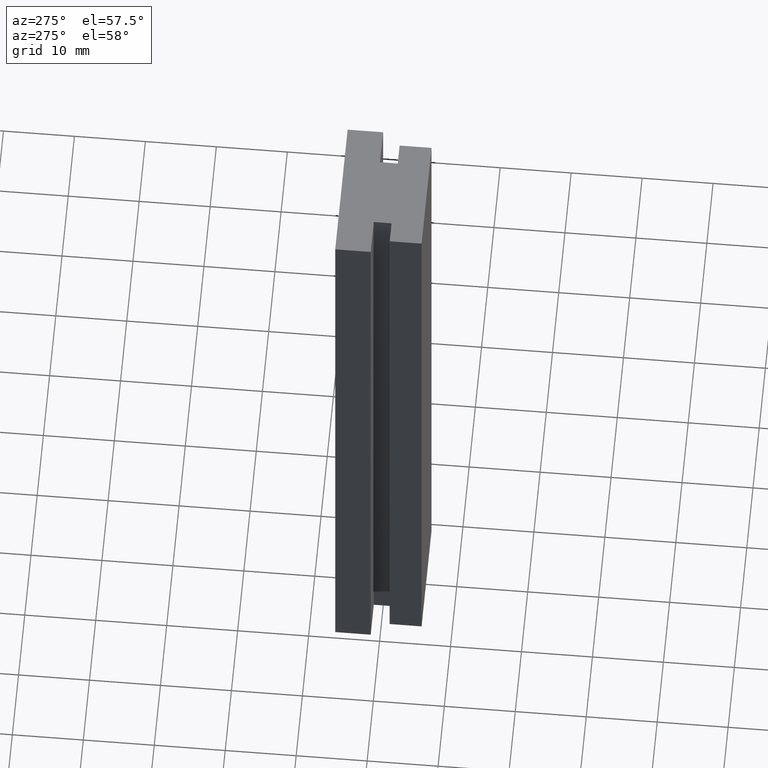
[diagram: clean part render]
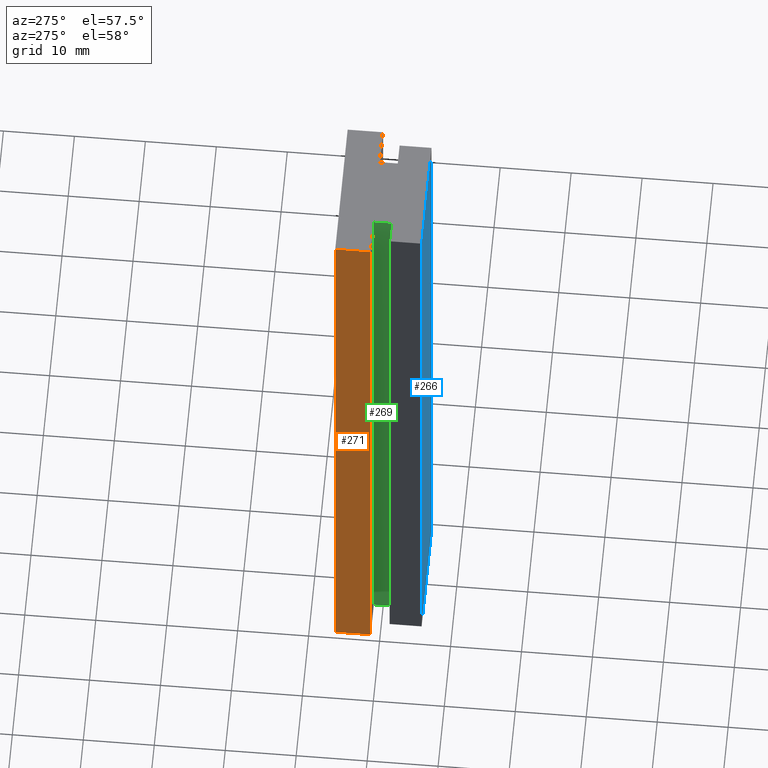
[diagram: same view with three faces highlighted in distinct colors, each labeled with its STEP entity id]
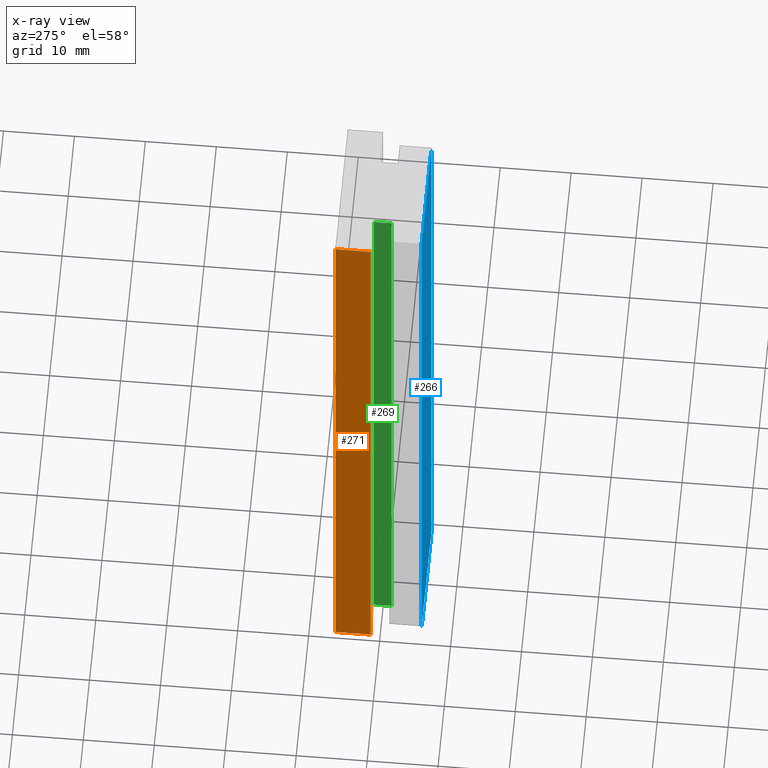
[diagram: x-ray of the same camera — body ghosted, the three highlighted faces saturated]
A machine part, auxiliary view with three faces highlighted in distinct colors.
The next image is the same camera in x-ray (body ghosted, the three faces saturated) — at least one of them is partly hidden behind the body in this view.
Their STEP definitions:

[orange] entity #271 — the highlighted planar face has unit normal (-1, 0, 0).
#25=FACE_OUTER_BOUND('',#39,.T.);
#39=EDGE_LOOP('',(#215,#216,#217,#218));
#73=LINE('',#420,#109);
#74=LINE('',#423,#110);
#75=LINE('',#425,#111);
#76=LINE('',#426,#112);
#109=VECTOR('',#343,100.);
#110=VECTOR('',#346,5.);
#111=VECTOR('',#347,5.);
#112=VECTOR('',#348,100.);
#135=VERTEX_POINT('',#416);
#136=VERTEX_POINT('',#418);
#137=VERTEX_POINT('',#422);
#138=VERTEX_POINT('',#424);
#169=EDGE_CURVE('',#135,#136,#73,.T.);
#170=EDGE_CURVE('',#135,#137,#74,.T.);
#171=EDGE_CURVE('',#138,#136,#75,.T.);
#172=EDGE_CURVE('',#137,#138,#76,.T.);
#215=ORIENTED_EDGE('',*,*,#170,.F.);
#216=ORIENTED_EDGE('',*,*,#169,.T.);
#217=ORIENTED_EDGE('',*,*,#171,.F.);
#218=ORIENTED_EDGE('',*,*,#172,.F.);
#257=PLANE('',#287);
#271=ADVANCED_FACE('',(#25),#257,.T.);
#287=AXIS2_PLACEMENT_3D('',#421,#344,#345);
#343=DIRECTION('',(0.,0.,1.));
#344=DIRECTION('center_axis',(-1.,0.,0.));
#345=DIRECTION('ref_axis',(0.,-1.,0.));
#346=DIRECTION('',(0.,1.,0.));
#347=DIRECTION('',(0.,-1.,0.));
#348=DIRECTION('',(0.,0.,1.));
#416=CARTESIAN_POINT('',(-10.,1.25,0.));
#418=CARTESIAN_POINT('',(-10.,1.25,100.));
#420=CARTESIAN_POINT('',(-10.,1.25,0.));
#421=CARTESIAN_POINT('Origin',(-10.,6.25,0.));
#422=CARTESIAN_POINT('',(-10.,6.25,0.));
#423=CARTESIAN_POINT('',(-10.,1.25,0.));
#424=CARTESIAN_POINT('',(-10.,6.25,100.));
#425=CARTESIAN_POINT('',(-10.,1.25,100.));
#426=CARTESIAN_POINT('',(-10.,6.25,0.));

[blue] entity #266 — the highlighted planar face has unit normal (0, -1, 0).
#20=FACE_OUTER_BOUND('',#34,.T.);
#34=EDGE_LOOP('',(#195,#196,#197,#198));
#58=LINE('',#390,#94);
#59=LINE('',#393,#95);
#60=LINE('',#395,#96);
#61=LINE('',#396,#97);
#94=VECTOR('',#318,100.);
#95=VECTOR('',#321,16.);
#96=VECTOR('',#322,16.);
#97=VECTOR('',#323,100.);
#125=VERTEX_POINT('',#386);
#126=VERTEX_POINT('',#388);
#127=VERTEX_POINT('',#392);
#128=VERTEX_POINT('',#394);
#154=EDGE_CURVE('',#125,#126,#58,.T.);
#155=EDGE_CURVE('',#125,#127,#59,.T.);
#156=EDGE_CURVE('',#128,#126,#60,.T.);
#157=EDGE_CURVE('',#127,#128,#61,.T.);
#195=ORIENTED_EDGE('',*,*,#155,.F.);
#196=ORIENTED_EDGE('',*,*,#154,.T.);
#197=ORIENTED_EDGE('',*,*,#156,.F.);
#198=ORIENTED_EDGE('',*,*,#157,.F.);
#252=PLANE('',#282);
#266=ADVANCED_FACE('',(#20),#252,.T.);
#282=AXIS2_PLACEMENT_3D('',#391,#319,#320);
#318=DIRECTION('',(0.,0.,1.));
#319=DIRECTION('center_axis',(0.,-1.,0.));
#320=DIRECTION('ref_axis',(1.,0.,0.));
#321=DIRECTION('',(-1.,0.,0.));
#322=DIRECTION('',(1.,0.,0.));
#323=DIRECTION('',(0.,0.,1.));
#386=CARTESIAN_POINT('',(8.,-5.75,0.));
#388=CARTESIAN_POINT('',(8.,-5.75,100.));
#390=CARTESIAN_POINT('',(8.,-5.75,0.));
#391=CARTESIAN_POINT('Origin',(-8.,-5.75,0.));
#392=CARTESIAN_POINT('',(-8.,-5.75,0.));
#393=CARTESIAN_POINT('',(8.,-5.75,0.));
#394=CARTESIAN_POINT('',(-8.,-5.75,100.));
#395=CARTESIAN_POINT('',(8.,-5.75,100.));
#396=CARTESIAN_POINT('',(-8.,-5.75,0.));

[green] entity #269 — the highlighted planar face has unit normal (-1, 0, 0).
#23=FACE_OUTER_BOUND('',#37,.T.);
#37=EDGE_LOOP('',(#207,#208,#209,#210));
#67=LINE('',#408,#103);
#68=LINE('',#411,#104);
#69=LINE('',#413,#105);
#70=LINE('',#414,#106);
#103=VECTOR('',#333,100.);
#104=VECTOR('',#336,2.5);
#105=VECTOR('',#337,2.5);
#106=VECTOR('',#338,100.);
#131=VERTEX_POINT('',#404);
#132=VERTEX_POINT('',#406);
#133=VERTEX_POINT('',#410);
#134=VERTEX_POINT('',#412);
#163=EDGE_CURVE('',#131,#132,#67,.T.);
#164=EDGE_CURVE('',#131,#133,#68,.T.);
#165=EDGE_CURVE('',#134,#132,#69,.T.);
#166=EDGE_CURVE('',#133,#134,#70,.T.);
#207=ORIENTED_EDGE('',*,*,#164,.F.);
#208=ORIENTED_EDGE('',*,*,#163,.T.);
#209=ORIENTED_EDGE('',*,*,#165,.F.);
#210=ORIENTED_EDGE('',*,*,#166,.F.);
#255=PLANE('',#285);
#269=ADVANCED_FACE('',(#23),#255,.T.);
#285=AXIS2_PLACEMENT_3D('',#409,#334,#335);
#333=DIRECTION('',(0.,0.,1.));
#334=DIRECTION('center_axis',(-1.,0.,0.));
#335=DIRECTION('ref_axis',(0.,-1.,0.));
#336=DIRECTION('',(0.,1.,0.));
#337=DIRECTION('',(0.,-1.,0.));
#338=DIRECTION('',(0.,0.,1.));
#404=CARTESIAN_POINT('',(-5.,-1.25,0.));
#406=CARTESIAN_POINT('',(-5.,-1.25,100.));
#408=CARTESIAN_POINT('',(-5.,-1.25,0.));
#409=CARTESIAN_POINT('Origin',(-5.,1.25,0.));
#410=CARTESIAN_POINT('',(-5.,1.25,0.));
#411=CARTESIAN_POINT('',(-5.,-1.25,0.));
#412=CARTESIAN_POINT('',(-5.,1.25,100.));
#413=CARTESIAN_POINT('',(-5.,-1.25,100.));
#414=CARTESIAN_POINT('',(-5.,1.25,0.));